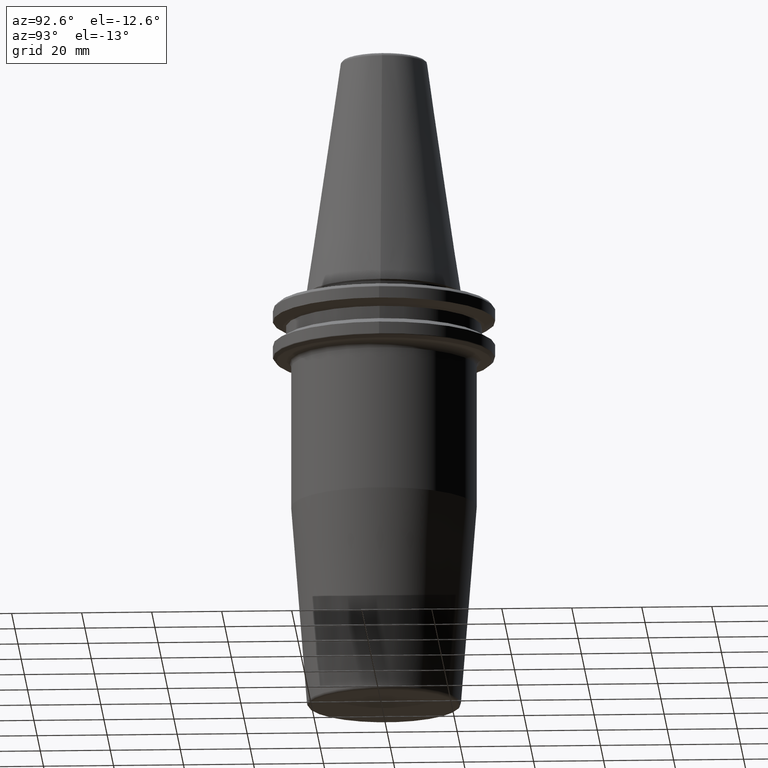
[diagram: clean part render]
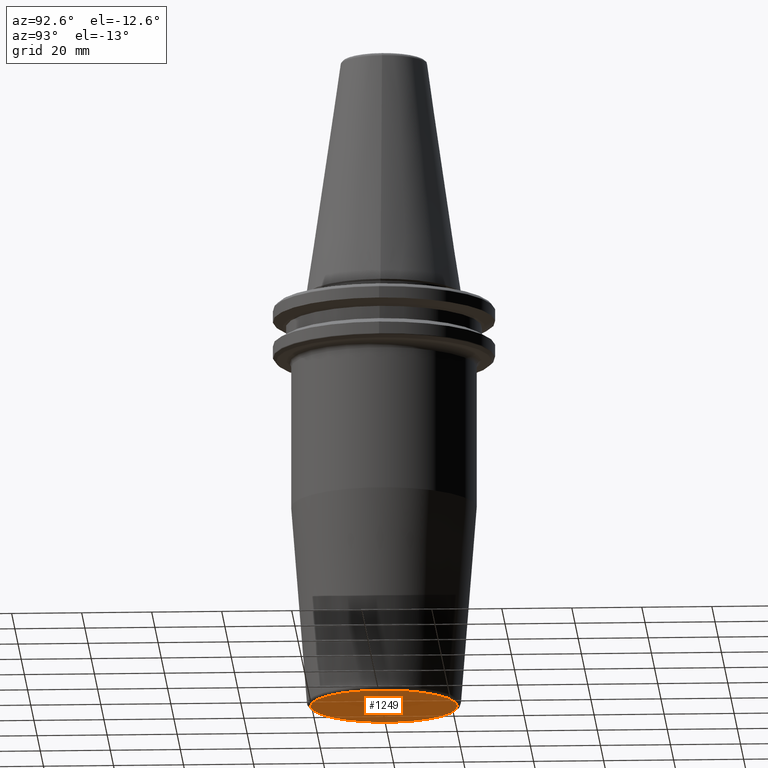
[diagram: same view with one face highlighted and labeled with its STEP entity id]
A machine part, auxiliary view. The second image highlights one B-rep face of the part: STEP entity #1249.
In plain terms, the highlighted planar face has unit normal (-0, 0, -1).
Its self-contained STEP definition (entity closure, byte-faithful):
#325 = ORIENTED_EDGE ( 'NONE', *, *, #1055, .T. ) ;
#393 = DIRECTION ( 'NONE',  ( -0.0000000000000000000, 1.946757673717420000E-016, -1.000000000000000000 ) ) ;
#450 = DIRECTION ( 'NONE',  ( -0.0000000000000000000, 1.946757673717420000E-016, -1.000000000000000000 ) ) ;
#516 = CIRCLE ( 'NONE', #733, 21.00308266626686700 ) ;
#580 = VERTEX_POINT ( 'NONE', #824 ) ;
#584 = PLANE ( 'NONE',  #803 ) ;
#601 = VERTEX_POINT ( 'NONE', #674 ) ;
#630 = AXIS2_PLACEMENT_3D ( 'NONE', #1030, #450, #1110 ) ;
#674 = CARTESIAN_POINT ( 'NONE',  ( 0.0000000000000000000, 21.00308266626687000, -120.0000000000000000 ) ) ;
#680 = DIRECTION ( 'NONE',  ( 0.0000000000000000000, 1.000000000000000000, 1.946757673717420000E-016 ) ) ;
#699 = CIRCLE ( 'NONE', #630, 21.00308266626686700 ) ;
#733 = AXIS2_PLACEMENT_3D ( 'NONE', #971, #393, #1061 ) ;
#770 = FACE_OUTER_BOUND ( 'NONE', #982, .T. ) ;
#803 = AXIS2_PLACEMENT_3D ( 'NONE', #959, #1232, #680 ) ;
#824 = CARTESIAN_POINT ( 'NONE',  ( 2.633179377035637100E-015, -21.00308266626686300, -120.0000000000000000 ) ) ;
#959 = CARTESIAN_POINT ( 'NONE',  ( 0.0000000000000000000, 21.00308266626687000, -120.0000000000000000 ) ) ;
#971 = CARTESIAN_POINT ( 'NONE',  ( 0.0000000000000000000, 2.395971582958279900E-015, -120.0000000000000000 ) ) ;
#982 = EDGE_LOOP ( 'NONE', ( #1044, #325 ) ) ;
#1030 = CARTESIAN_POINT ( 'NONE',  ( 0.0000000000000000000, 2.395971582958279900E-015, -120.0000000000000000 ) ) ;
#1044 = ORIENTED_EDGE ( 'NONE', *, *, #1251, .T. ) ;
#1055 = EDGE_CURVE ( 'NONE', #580, #601, #699, .T. ) ;
#1061 = DIRECTION ( 'NONE',  ( 0.0000000000000000000, 1.000000000000000000, 0.0000000000000000000 ) ) ;
#1110 = DIRECTION ( 'NONE',  ( 0.0000000000000000000, 1.000000000000000000, 0.0000000000000000000 ) ) ;
#1232 = DIRECTION ( 'NONE',  ( -0.0000000000000000000, 1.946757673717420000E-016, -1.000000000000000000 ) ) ;
#1249 = ADVANCED_FACE ( 'NONE', ( #770 ), #584, .T. ) ;
#1251 = EDGE_CURVE ( 'NONE', #601, #580, #516, .T. ) ;